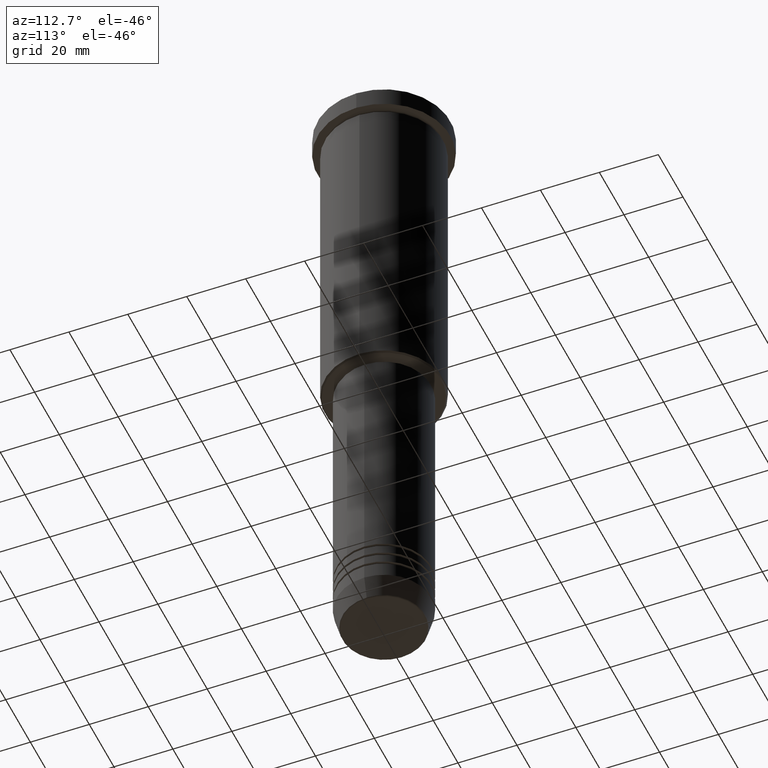
[diagram: clean part render]
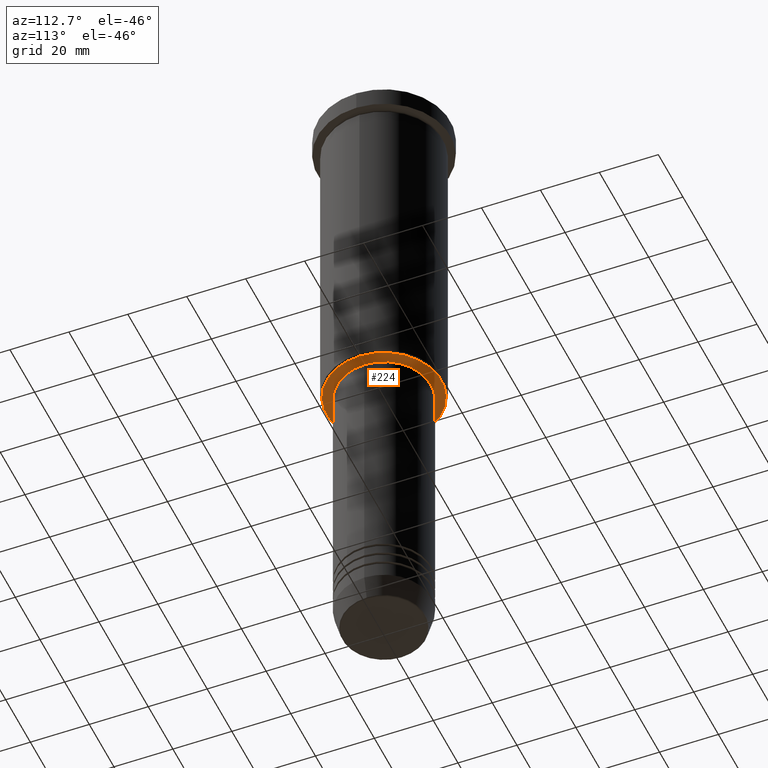
[diagram: same view with one face highlighted and labeled with its STEP entity id]
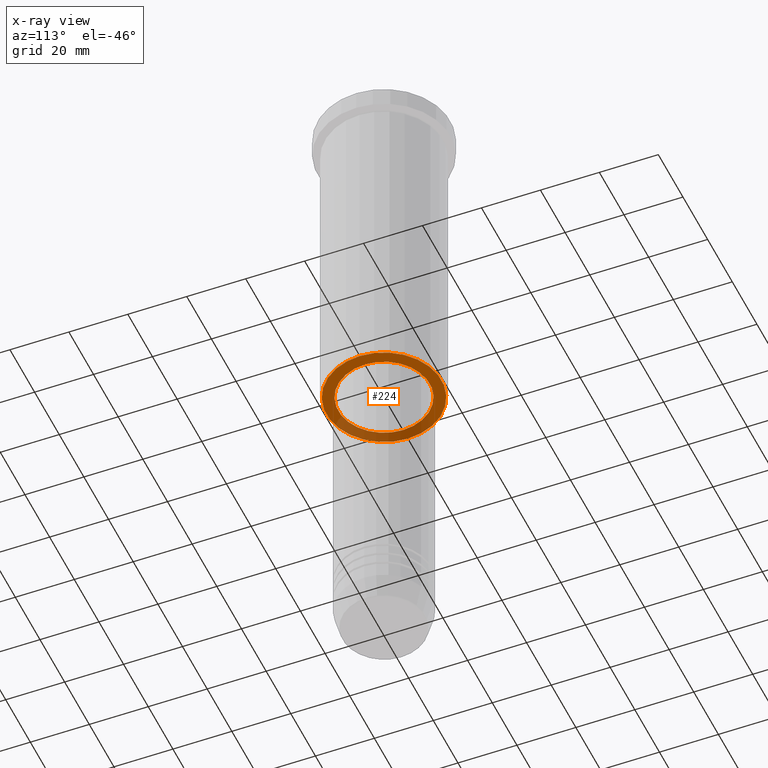
[diagram: x-ray of the same camera — body ghosted, the highlighted face saturated]
A machine part, auxiliary view. The second image highlights one B-rep face of the part: STEP entity #224.
The next image is the same camera in x-ray: the body ghosted, the highlighted face saturated — about 30% of this face is hidden behind the body in this view.
In plain terms, the highlighted planar face has unit normal (0, 0, -1).
Its self-contained STEP definition (entity closure, byte-faithful):
#6 = CARTESIAN_POINT ( 'NONE',  ( 19.49999999999993250, 0.000000000000000000, -115.9999999999999858 ) ) ;
#17 = DIRECTION ( 'NONE',  ( -0.000000000000000000, -0.000000000000000000, 1.000000000000000000 ) ) ;
#26 = DIRECTION ( 'NONE',  ( 1.000000000000000000, 0.000000000000000000, 0.000000000000000000 ) ) ;
#31 = CARTESIAN_POINT ( 'NONE',  ( 0.000000000000000000, 0.000000000000000000, -115.9999999999999858 ) ) ;
#44 = AXIS2_PLACEMENT_3D ( 'NONE', #454, #17, #1083 ) ;
#57 = ORIENTED_EDGE ( 'NONE', *, *, #962, .T. ) ;
#69 = ORIENTED_EDGE ( 'NONE', *, *, #134, .T. ) ;
#102 = AXIS2_PLACEMENT_3D ( 'NONE', #1177, #174, #970 ) ;
#134 = EDGE_CURVE ( 'NONE', #920, #670, #159, .T. ) ;
#152 = ORIENTED_EDGE ( 'NONE', *, *, #803, .T. ) ;
#159 = CIRCLE ( 'NONE', #847, 15.50000000000000000 ) ;
#173 = EDGE_LOOP ( 'NONE', ( #1075, #152 ) ) ;
#174 = DIRECTION ( 'NONE',  ( 0.000000000000000000, 0.000000000000000000, -1.000000000000000000 ) ) ;
#183 = VERTEX_POINT ( 'NONE', #785 ) ;
#204 = CARTESIAN_POINT ( 'NONE',  ( 0.000000000000000000, 0.000000000000000000, -115.9999999999999858 ) ) ;
#224 = ADVANCED_FACE ( 'NONE', ( #1132, #232 ), #694, .T. ) ;
#232 = FACE_BOUND ( 'NONE', #820, .T. ) ;
#254 = CARTESIAN_POINT ( 'NONE',  ( 15.50000000000000000, 0.000000000000000000, -115.9999999999999858 ) ) ;
#256 = AXIS2_PLACEMENT_3D ( 'NONE', #945, #684, #412 ) ;
#322 = CARTESIAN_POINT ( 'NONE',  ( -15.50000000000000000, 1.898202538678397557E-15, -115.9999999999999858 ) ) ;
#412 = DIRECTION ( 'NONE',  ( -1.000000000000000000, 0.000000000000000000, -0.000000000000000000 ) ) ;
#454 = CARTESIAN_POINT ( 'NONE',  ( 0.000000000000000000, 0.000000000000000000, -115.9999999999999858 ) ) ;
#467 = CIRCLE ( 'NONE', #971, 19.49999999999993250 ) ;
#473 = VERTEX_POINT ( 'NONE', #6 ) ;
#488 = DIRECTION ( 'NONE',  ( -1.000000000000000000, 0.000000000000000000, 0.000000000000000000 ) ) ;
#492 = EDGE_CURVE ( 'NONE', #473, #183, #467, .T. ) ;
#567 = DIRECTION ( 'NONE',  ( 0.000000000000000000, 0.000000000000000000, -1.000000000000000000 ) ) ;
#670 = VERTEX_POINT ( 'NONE', #322 ) ;
#684 = DIRECTION ( 'NONE',  ( 0.000000000000000000, 0.000000000000000000, -1.000000000000000000 ) ) ;
#694 = PLANE ( 'NONE',  #256 ) ;
#785 = CARTESIAN_POINT ( 'NONE',  ( -19.49999999999993250, 2.418677428316018782E-15, -115.9999999999999858 ) ) ;
#803 = EDGE_CURVE ( 'NONE', #183, #473, #1110, .T. ) ;
#820 = EDGE_LOOP ( 'NONE', ( #69, #57 ) ) ;
#846 = DIRECTION ( 'NONE',  ( -0.000000000000000000, -0.000000000000000000, 1.000000000000000000 ) ) ;
#847 = AXIS2_PLACEMENT_3D ( 'NONE', #31, #846, #26 ) ;
#885 = CIRCLE ( 'NONE', #44, 15.50000000000000000 ) ;
#920 = VERTEX_POINT ( 'NONE', #254 ) ;
#945 = CARTESIAN_POINT ( 'NONE',  ( 0.000000000000000000, 20.00000000000000355, -115.9999999999999858 ) ) ;
#962 = EDGE_CURVE ( 'NONE', #670, #920, #885, .T. ) ;
#970 = DIRECTION ( 'NONE',  ( -1.000000000000000000, 0.000000000000000000, 0.000000000000000000 ) ) ;
#971 = AXIS2_PLACEMENT_3D ( 'NONE', #204, #567, #488 ) ;
#1075 = ORIENTED_EDGE ( 'NONE', *, *, #492, .T. ) ;
#1083 = DIRECTION ( 'NONE',  ( 1.000000000000000000, 0.000000000000000000, 0.000000000000000000 ) ) ;
#1110 = CIRCLE ( 'NONE', #102, 19.49999999999993250 ) ;
#1132 = FACE_OUTER_BOUND ( 'NONE', #173, .T. ) ;
#1177 = CARTESIAN_POINT ( 'NONE',  ( 0.000000000000000000, 0.000000000000000000, -115.9999999999999858 ) ) ;